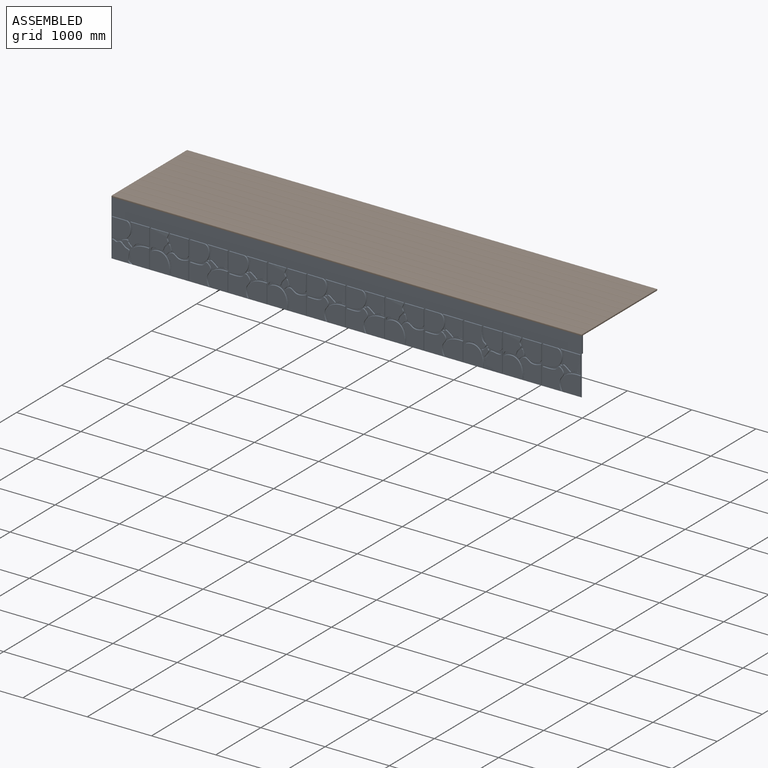
[diagram: assembled view]
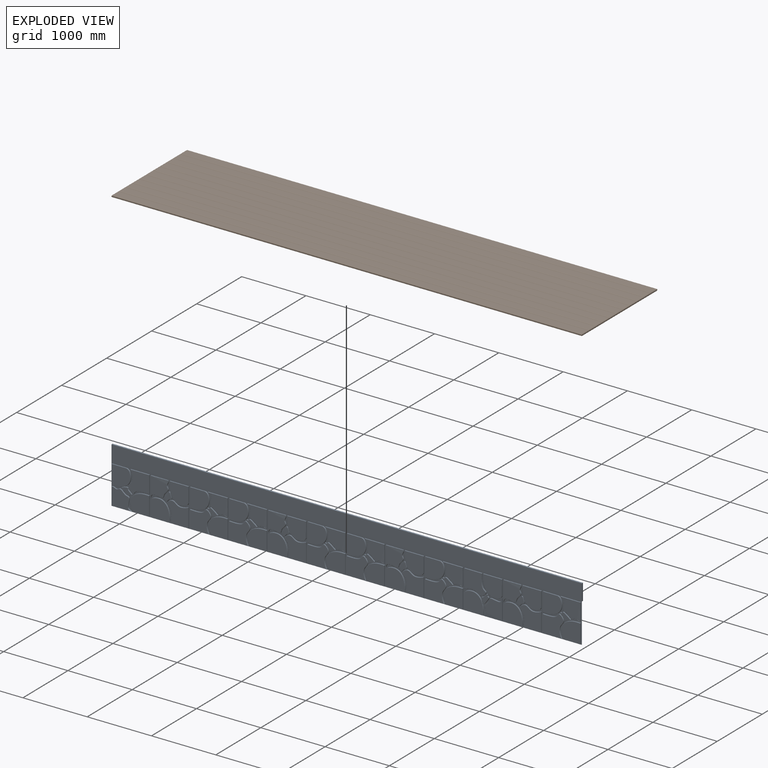
[diagram: exploded view]
GUIDED TOUR — MATED ASSEMBLY WITH SUBASSEMBLIES (Onshape document 3dcd6eb83dcc1490669a34c6, AutoMate assembly 3dcd6eb83dcc1490669a34c6_368724a0698504fedb2d7446_d10040594b9659fdce17934c_default)

This assembly has 24 component occurrences arranged in 2 top-level units: 0 individual components plus 2 subassemblies (S0, S1). The tour has two levels: first the top level, where each subassembly is treated as one rigid unit; then each subassembly is toured internally in its own section (nesting deeper than one subassembly level is flattened into its subassembly's section).

Components are labeled P0..P23 across the whole record; subassembly units are labeled S0..S1. A mate is a constraint between two units; its type names the relative motion it leaves free:
  PLANAR — leaves sliding in the plane through the listed point (normal = the listed direction) and rotation about that normal free.
Axis/direction vectors are unit vectors and 'through' points are millimeter coordinates, both in the assembly's world frame.

TOP-LEVEL MATES (between units; each subassembly's internal mates are listed in its own section)
  1. PLANAR "Planar 1": S1 <-> S0, direction (0.000, 0.000, -1.000) through (-256.21, -809.91, 1233.63) mm

TOP-LEVEL ASSEMBLY ORDER
  1. S1 — the base component [order verified]
  2. S0 [order verified]
Order-tag legend:
  [order verified] — this step's position reverses a verified removal order: the component was checked to insert without passing through the ones already placed.

Of the 24 component occurrences, 12 carry the full construction recipe — the FeatureScript program that regenerates the part's solid from scratch; the rest are supplied as boundary geometry only. Each toured unit is shown spotlighted twice — assembled, then exploded with a leader line back to its socket (green = recipe-attached component, orange = geometry-only, blue = subassembly unit; the rest desaturated gray).
NOTE — this tour is split across 2 documents so each fits a 32k-token context. This is document 1: the component sections continue in the remaining 1 document, each repeating the header above.
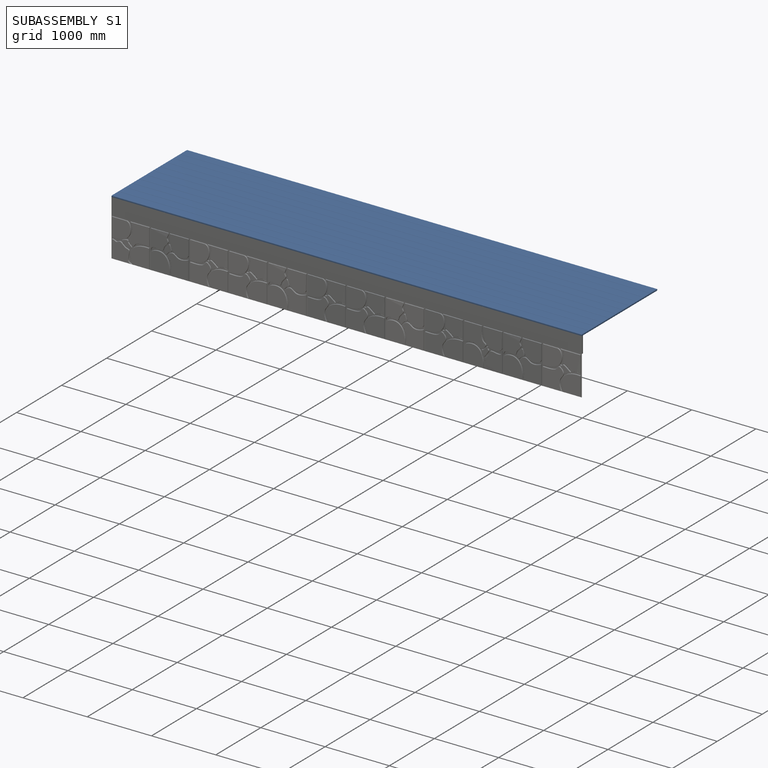
[diagram: subassembly S1 — assembled]
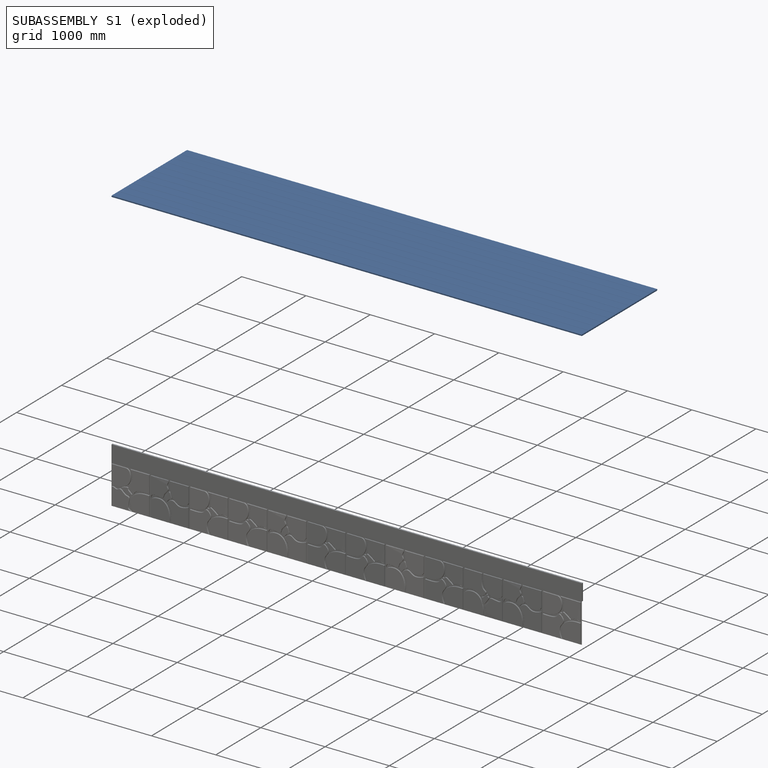
[diagram: subassembly S1 — exploded]
SUBASSEMBLY S1 — 11 components (P2, P3, P4, P5, P10, P11, P14, P15, P16, P21, P22), of which 11 recipe-attached; toured below.
Held by: PLANAR mate "Planar 1" to S0.
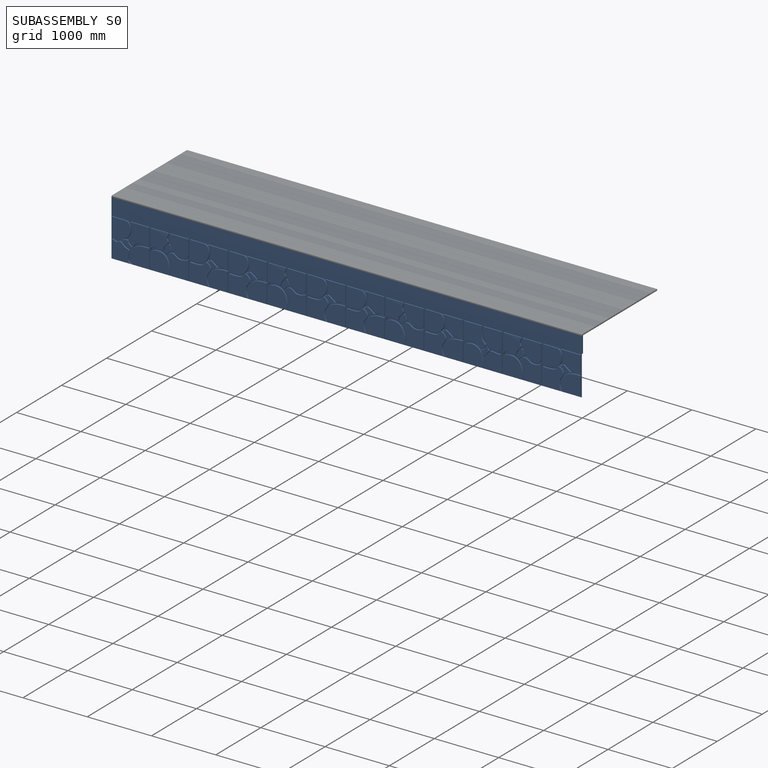
[diagram: subassembly S0 — assembled]
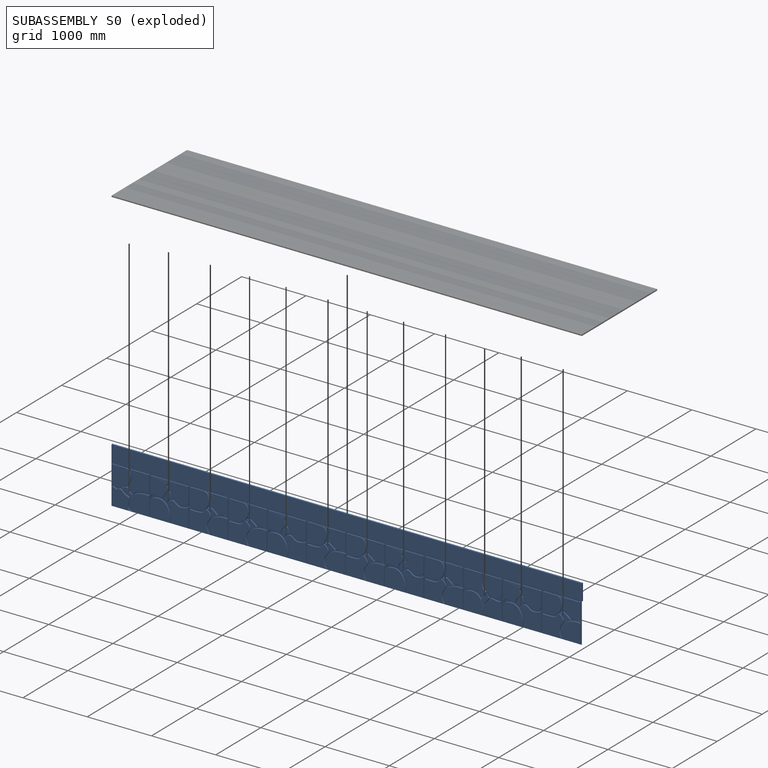
[diagram: subassembly S0 — exploded]
SUBASSEMBLY S0 — 13 components (P0, P1, P6, P7, P8, P9, P12, P13, P17, P18, P19, P20, P23), of which 1 recipe-attached; toured below.
Held by: PLANAR mate "Planar 1" to S1.
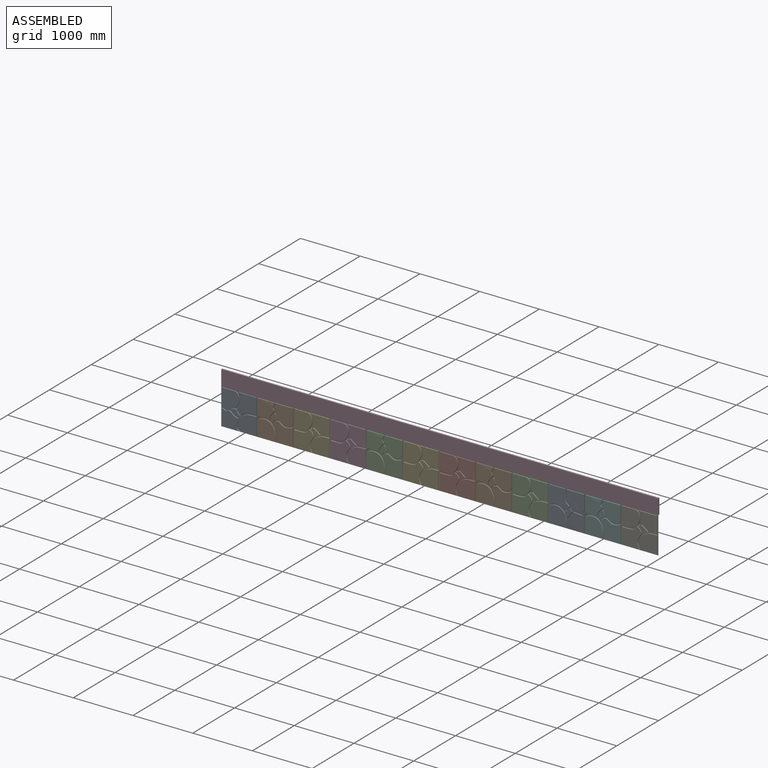
[diagram: subassembly S0 — assembled view]
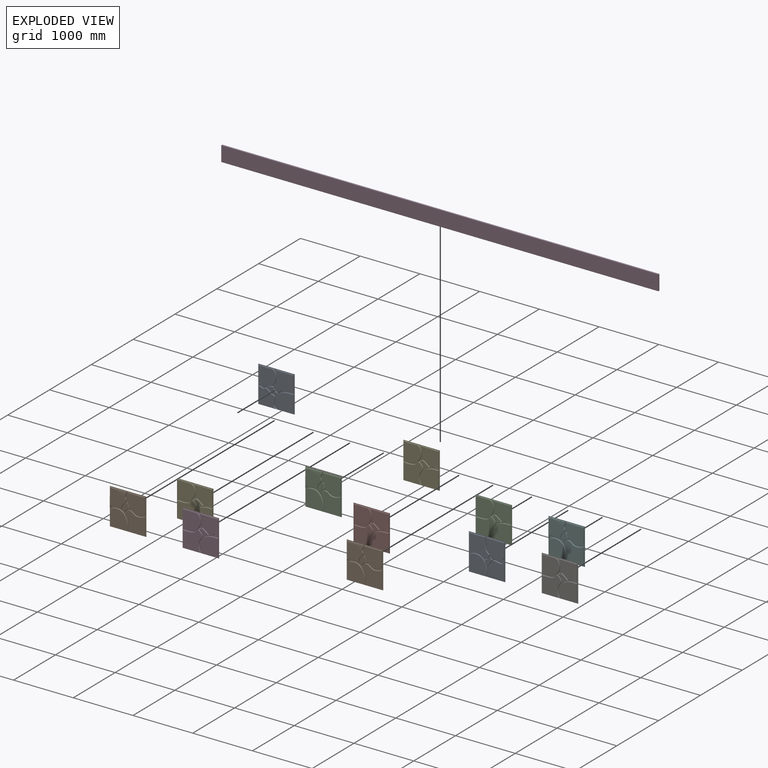
[diagram: subassembly S0 — exploded view]
SUBASSEMBLY S0 TOUR — 13 components, shown here in isolation at its own camera.

INTERNAL MATES
  1. PLANAR "Planar 5": P6 <-> P20, direction (0.000, 1.000, 0.000) through (2182.19, -807.26, 979.63) mm
  2. PLANAR "Planar 8": P18 <-> P13, direction (0.000, 1.000, 0.000) through (4010.99, -806.79, 979.63) mm
  3. PLANAR "Planar 11": P9 <-> P17, direction (0.000, 1.000, 0.000) through (5839.79, -806.32, 979.63) mm
  4. PLANAR "Planar 7": P13 <-> P23, direction (0.000, 1.000, 0.000) through (3401.39, -806.94, 979.63) mm
  5. PLANAR "Planar 10": P17 <-> P19, direction (0.000, 1.000, 0.000) through (5230.19, -806.48, 979.63) mm
  6. PLANAR "Planar 3": P8 <-> P1, direction (0.000, 1.000, 0.000) through (962.99, -807.57, 979.63) mm
  7. PLANAR "Planar 2": P1 <-> P0, direction (0.000, 1.000, 0.000) through (353.39, -807.72, 979.63) mm
  8. PLANAR "Planar 4": P20 <-> P8, direction (0.000, 1.000, 0.000) through (1572.59, -807.41, 979.63) mm
  9. PLANAR "Planar 13": P7 <-> P0, direction (0.000, 0.000, -1.000) through (-256.21, -809.91, 979.63) mm
  10. PLANAR "Planar 9": P19 <-> P18, direction (0.000, 1.000, 0.000) through (4620.59, -806.63, 979.63) mm
  11. PLANAR "Planar 6": P23 <-> P6, direction (0.000, 1.000, 0.000) through (2791.79, -807.10, 979.63) mm
  12. PLANAR "Planar 12": P12 <-> P9, direction (0.000, 1.000, 0.000) through (6449.39, -806.17, 979.63) mm
  13. PLANAR "Planar 12": P12 <-> P9, direction (0.000, 1.000, 0.000) through (6449.39, -806.17, 979.63) mm
  14. PLANAR "Planar 8": P18 <-> P13, direction (0.000, 1.000, 0.000) through (4010.99, -806.79, 979.63) mm
  15. PLANAR "Planar 3": P8 <-> P1, direction (0.000, 1.000, 0.000) through (962.99, -807.57, 979.63) mm
  16. PLANAR "Planar 13": P7 <-> P0, direction (0.000, 0.000, -1.000) through (-256.21, -809.91, 979.63) mm
  17. PLANAR "Planar 6": P23 <-> P6, direction (0.000, 1.000, 0.000) through (2791.79, -807.10, 979.63) mm
  18. PLANAR "Planar 11": P9 <-> P17, direction (0.000, 1.000, 0.000) through (5839.79, -806.32, 979.63) mm
  19. PLANAR "Planar 5": P6 <-> P20, direction (0.000, 1.000, 0.000) through (2182.19, -807.26, 979.63) mm
  20. PLANAR "Planar 4": P20 <-> P8, direction (0.000, 1.000, 0.000) through (1572.59, -807.41, 979.63) mm
  21. PLANAR "Planar 7": P13 <-> P23, direction (0.000, 1.000, 0.000) through (3401.39, -806.94, 979.63) mm
  22. PLANAR "Planar 9": P19 <-> P18, direction (0.000, 1.000, 0.000) through (4620.59, -806.63, 979.63) mm
  23. PLANAR "Planar 2": P1 <-> P0, direction (0.000, 1.000, 0.000) through (353.39, -807.72, 979.63) mm
  24. PLANAR "Planar 10": P17 <-> P19, direction (0.000, 1.000, 0.000) through (5230.19, -806.48, 979.63) mm

ASSEMBLY ORDER (within the subassembly)
  1. P23 — the base component [order verified]
  2. P13 [order verified]
  3. P18 [order verified]
  4. P6 [order verified]
  5. P20 [order verified]
  6. P8 [order verified]
  7. P1 [order verified]
  8. P0 [order verified]
  9. P19 [order verified]
  10. P17 [order verified]
  11. P9 [order verified]
  12. P12 [order verified]
  13. P7 [order verified]
Order-tag legend:
  [order verified] — this step's position reverses a verified removal order: the component was checked to insert without passing through the ones already placed.
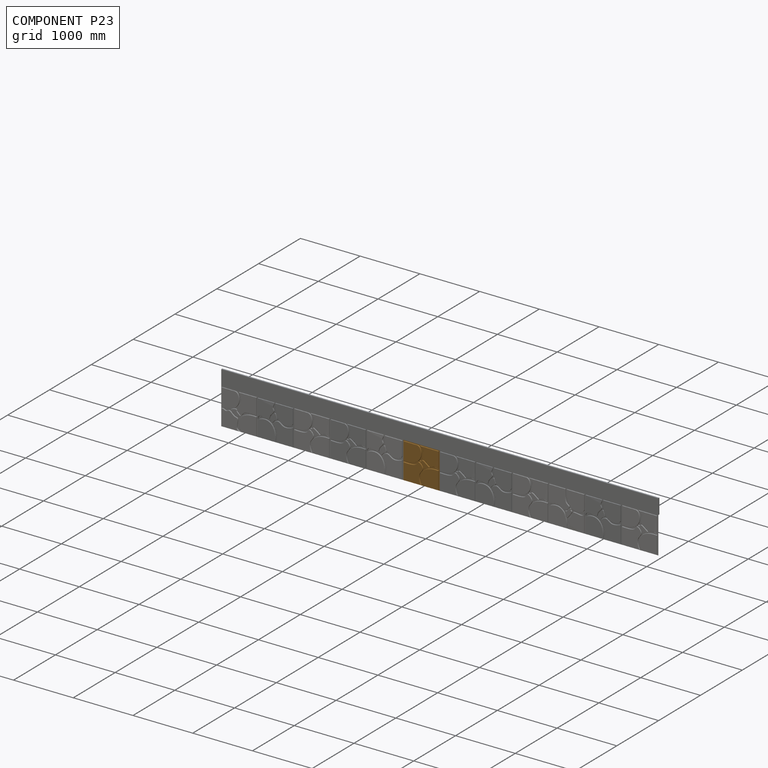
[diagram: component P23 — assembled]
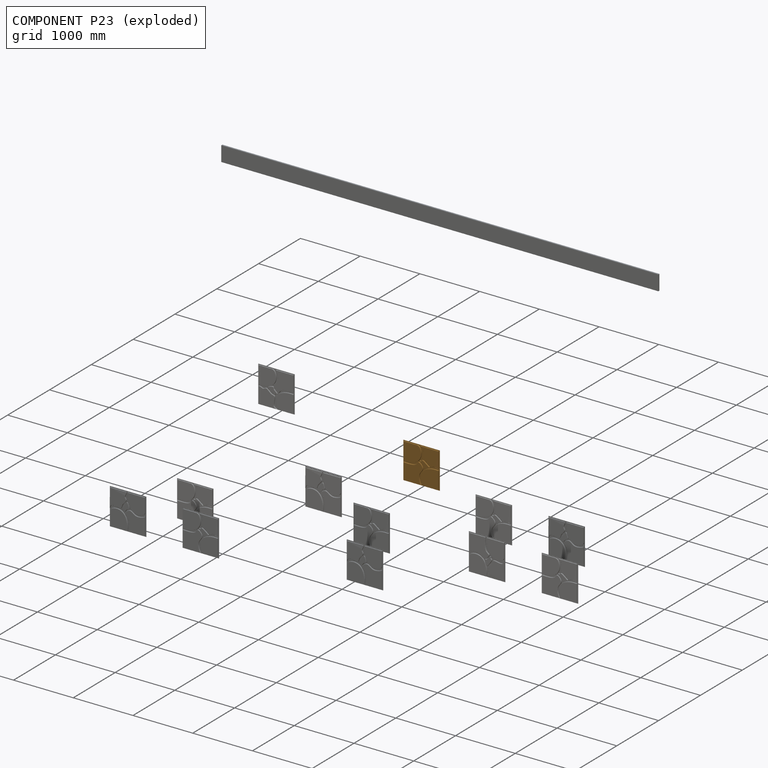
[diagram: component P23 — exploded]
COMPONENT P23 — geometry summary (no construction recipe available for this part):
  bounding box: 609.6 x 609.6 x 18.3 mm
  B-rep topology: 1 solid, 29 faces, 130 edges
  volume: 5727487 mm^3 (84% of its bounding box)
Held by: PLANAR mate "Planar 7" to P13; PLANAR mate "Planar 6" to P6; PLANAR mate "Planar 6" to P6; PLANAR mate "Planar 7" to P13.
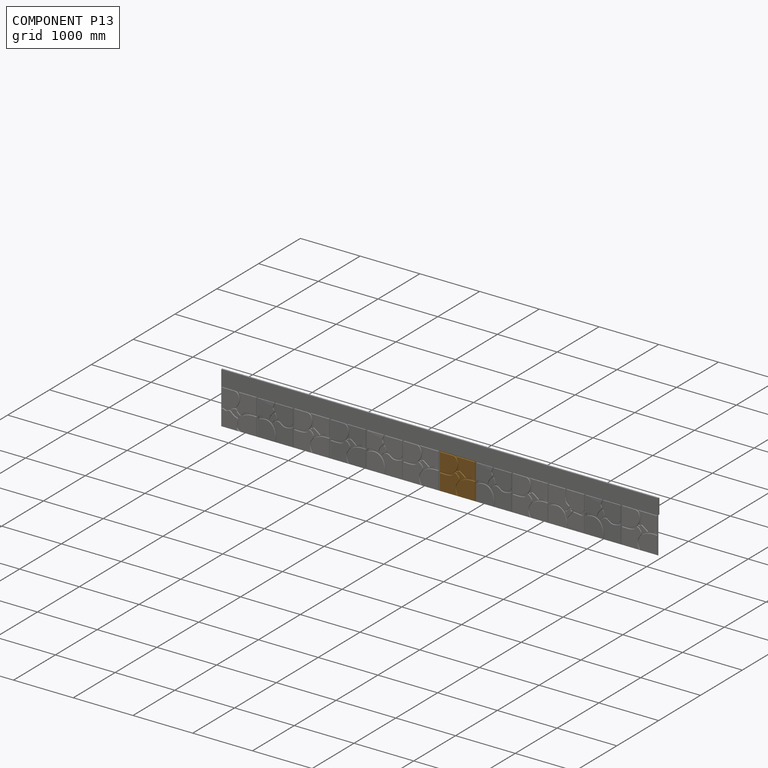
[diagram: component P13 — assembled]
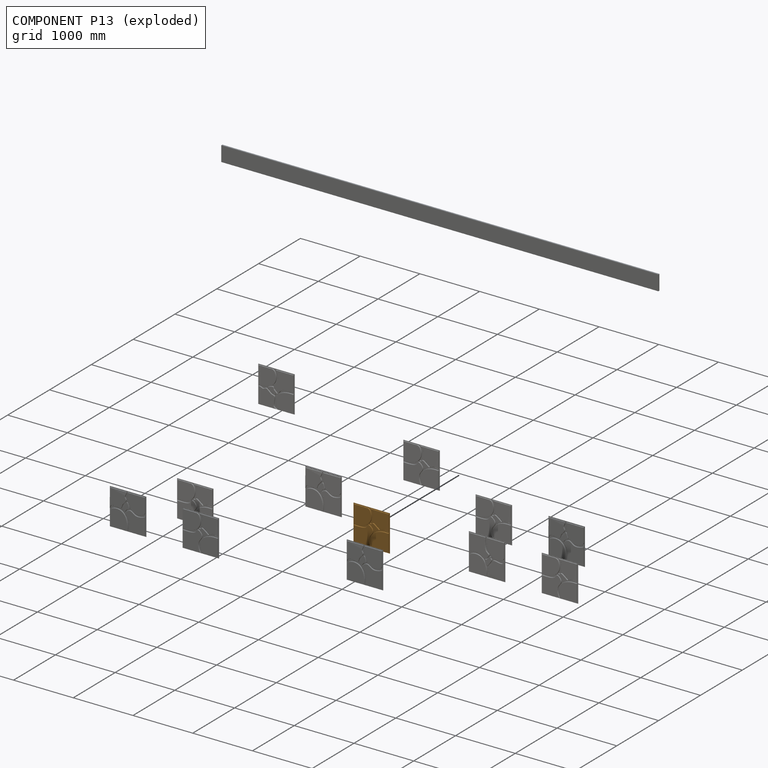
[diagram: component P13 — exploded]
COMPONENT P13 — geometry summary (no construction recipe available for this part):
  bounding box: 609.6 x 609.6 x 18.3 mm
  B-rep topology: 1 solid, 29 faces, 130 edges
  volume: 5727487 mm^3 (84% of its bounding box)
Held by: PLANAR mate "Planar 8" to P18; PLANAR mate "Planar 7" to P23; PLANAR mate "Planar 8" to P18; PLANAR mate "Planar 7" to P23.
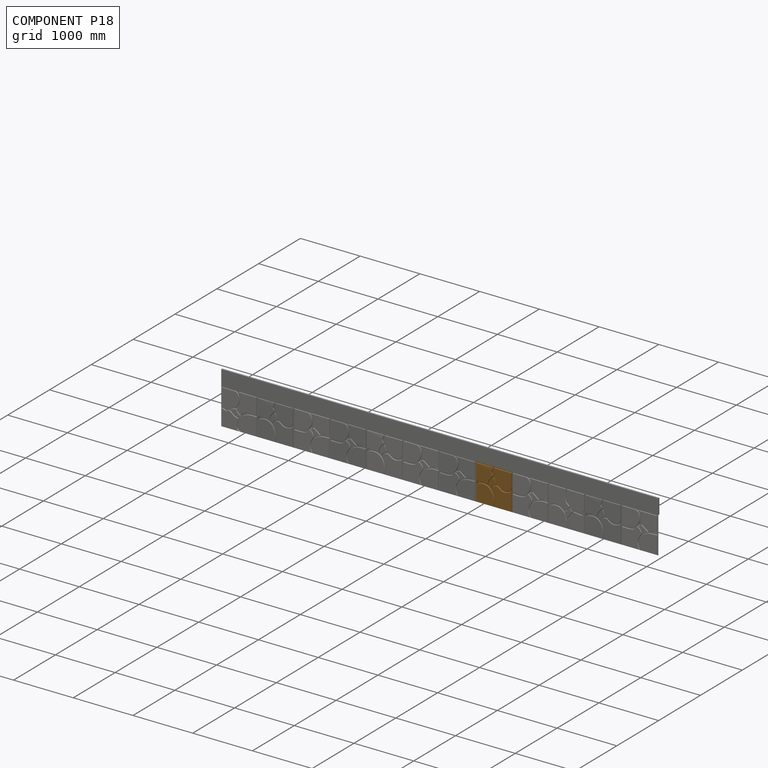
[diagram: component P18 — assembled]
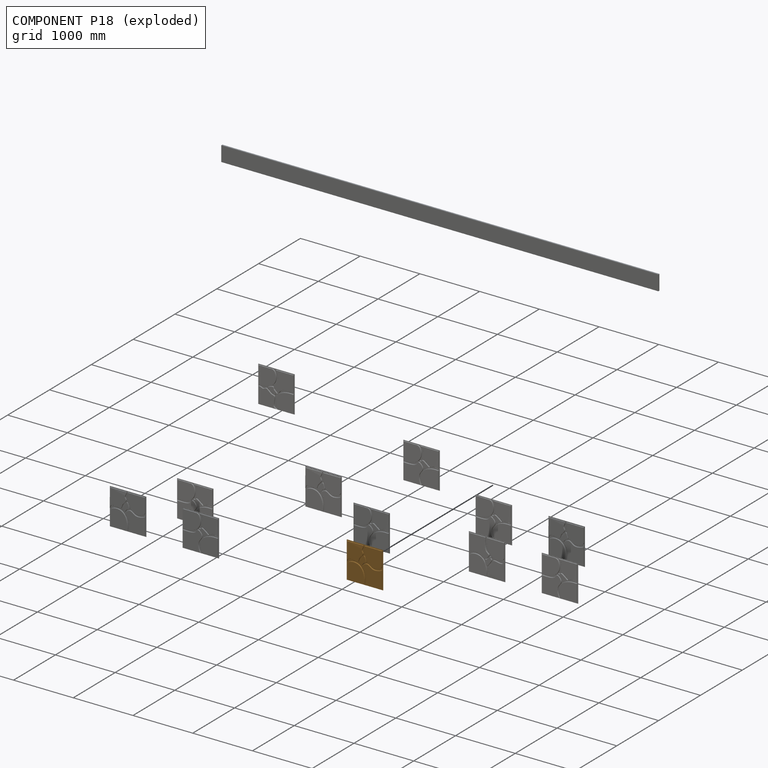
[diagram: component P18 — exploded]
COMPONENT P18 — geometry summary (no construction recipe available for this part):
  bounding box: 609.6 x 609.6 x 18.3 mm
  B-rep topology: 1 solid, 29 faces, 130 edges
  volume: 5727487 mm^3 (84% of its bounding box)
Held by: PLANAR mate "Planar 8" to P13; PLANAR mate "Planar 9" to P19; PLANAR mate "Planar 8" to P13; PLANAR mate "Planar 9" to P19.
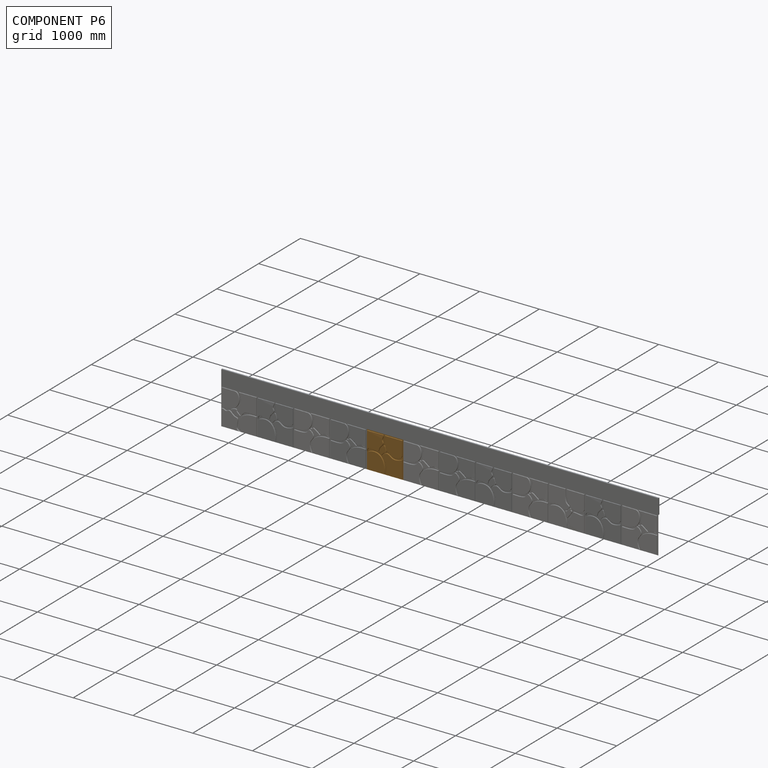
[diagram: component P6 — assembled]
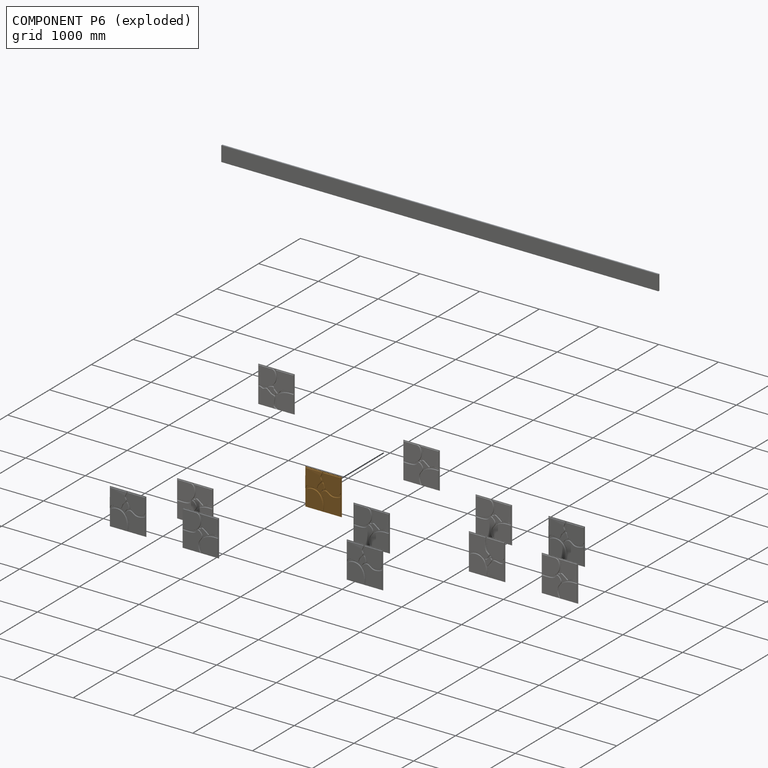
[diagram: component P6 — exploded]
COMPONENT P6 — geometry summary (no construction recipe available for this part):
  bounding box: 609.6 x 609.6 x 18.3 mm
  B-rep topology: 1 solid, 29 faces, 130 edges
  volume: 5727487 mm^3 (84% of its bounding box)
Held by: PLANAR mate "Planar 5" to P20; PLANAR mate "Planar 6" to P23; PLANAR mate "Planar 6" to P23; PLANAR mate "Planar 5" to P20.
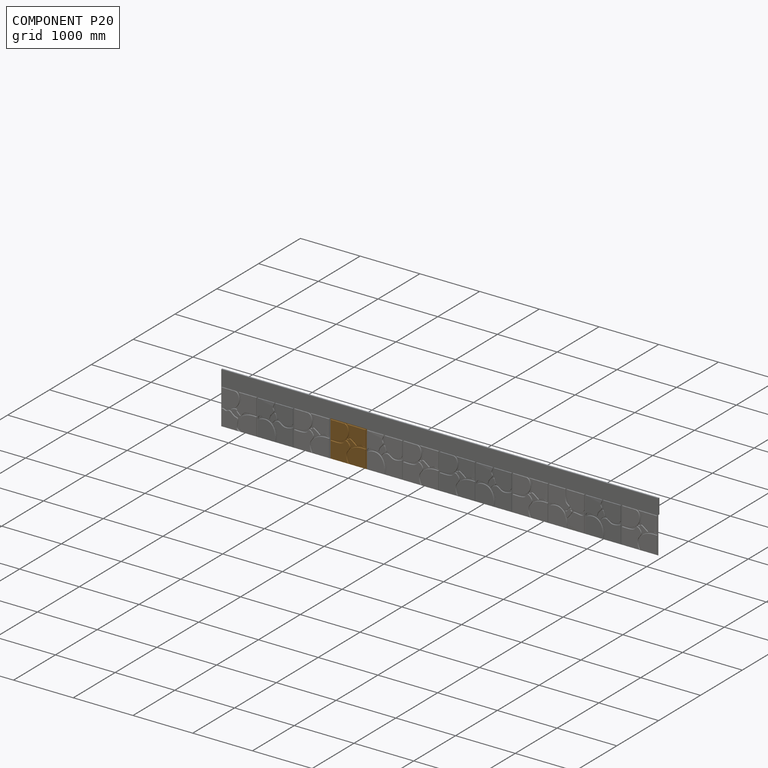
[diagram: component P20 — assembled]
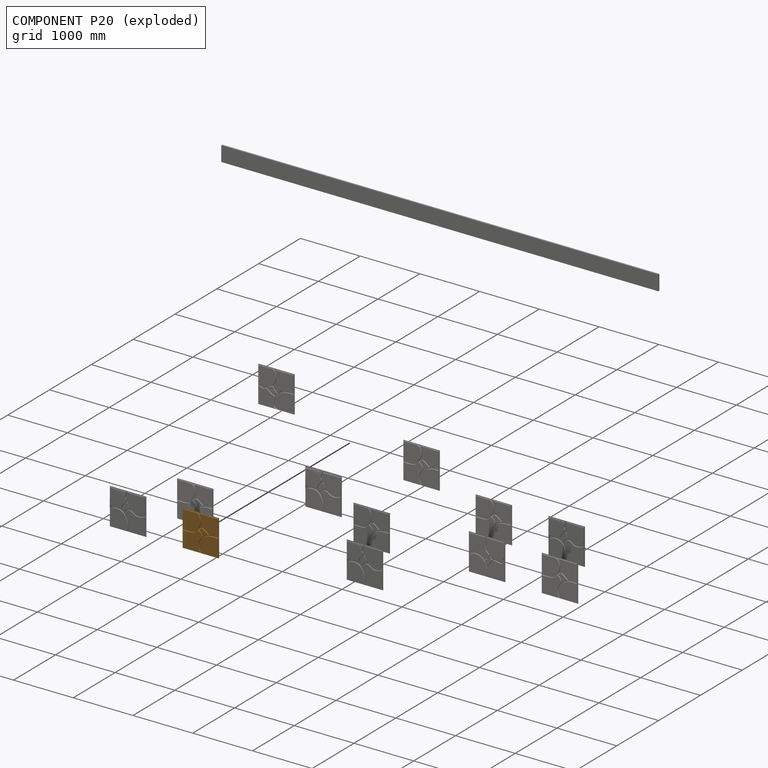
[diagram: component P20 — exploded]
COMPONENT P20 — geometry summary (no construction recipe available for this part):
  bounding box: 609.6 x 609.6 x 18.3 mm
  B-rep topology: 1 solid, 29 faces, 130 edges
  volume: 5727487 mm^3 (84% of its bounding box)
Held by: PLANAR mate "Planar 5" to P6; PLANAR mate "Planar 4" to P8; PLANAR mate "Planar 5" to P6; PLANAR mate "Planar 4" to P8.
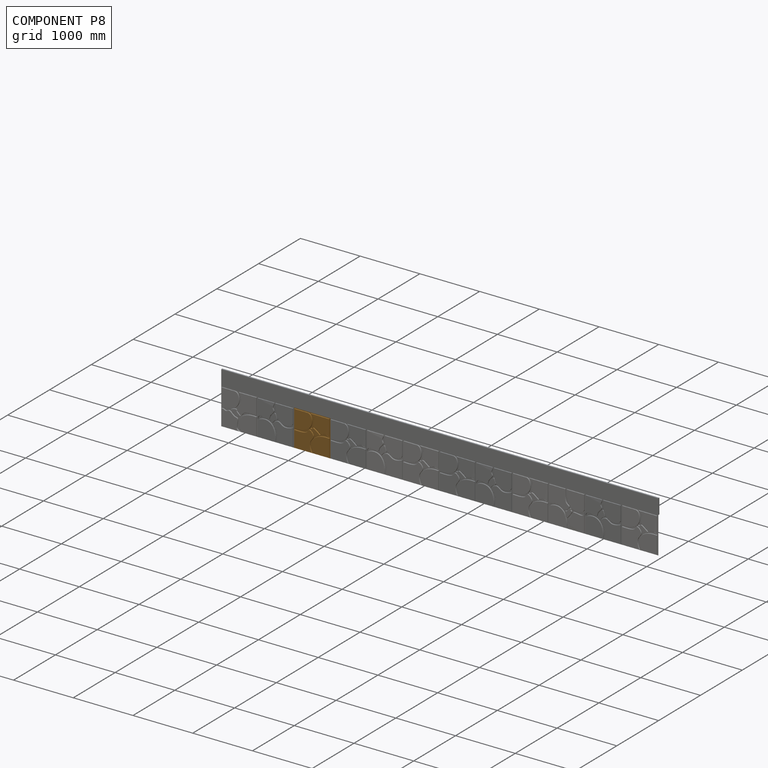
[diagram: component P8 — assembled]
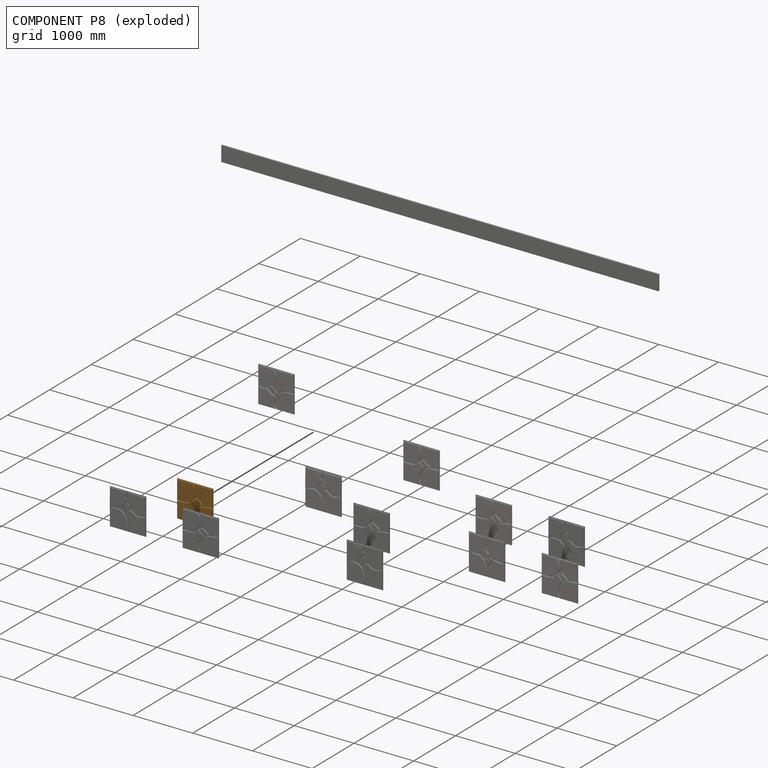
[diagram: component P8 — exploded]
COMPONENT P8 — geometry summary (no construction recipe available for this part):
  bounding box: 609.6 x 609.6 x 18.3 mm
  B-rep topology: 1 solid, 29 faces, 130 edges
  volume: 5727487 mm^3 (84% of its bounding box)
Held by: PLANAR mate "Planar 3" to P1; PLANAR mate "Planar 4" to P20; PLANAR mate "Planar 3" to P1; PLANAR mate "Planar 4" to P20.
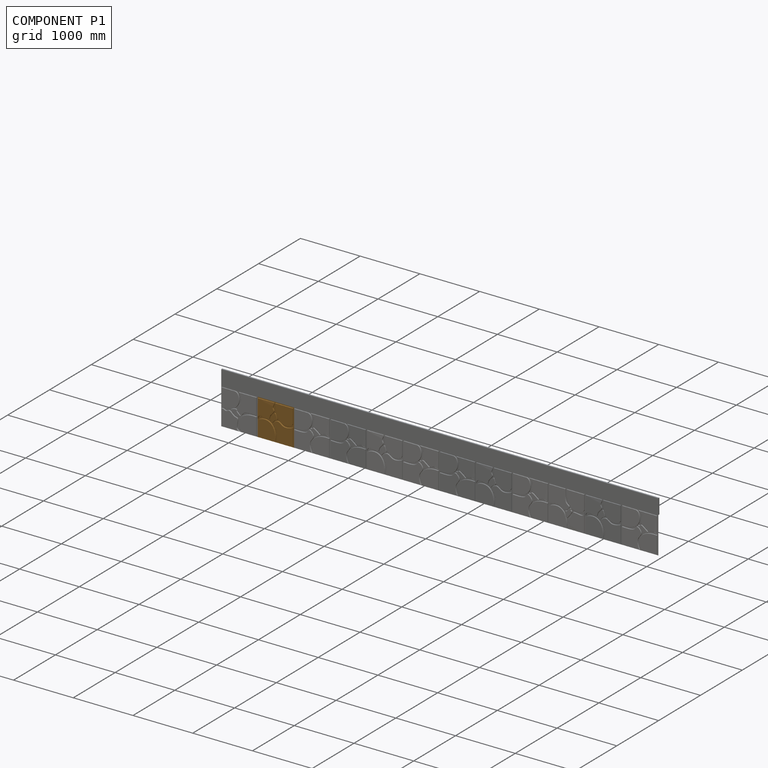
[diagram: component P1 — assembled]
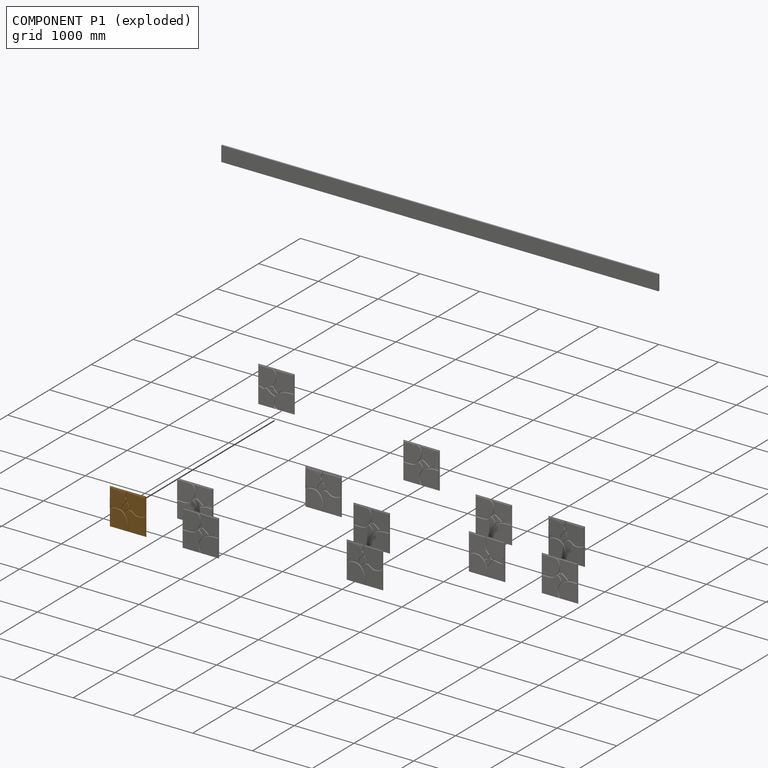
[diagram: component P1 — exploded]
COMPONENT P1 — geometry summary (no construction recipe available for this part):
  bounding box: 609.6 x 609.6 x 18.3 mm
  B-rep topology: 1 solid, 29 faces, 130 edges
  volume: 5727487 mm^3 (84% of its bounding box)
Held by: PLANAR mate "Planar 3" to P8; PLANAR mate "Planar 2" to P0; PLANAR mate "Planar 3" to P8; PLANAR mate "Planar 2" to P0.
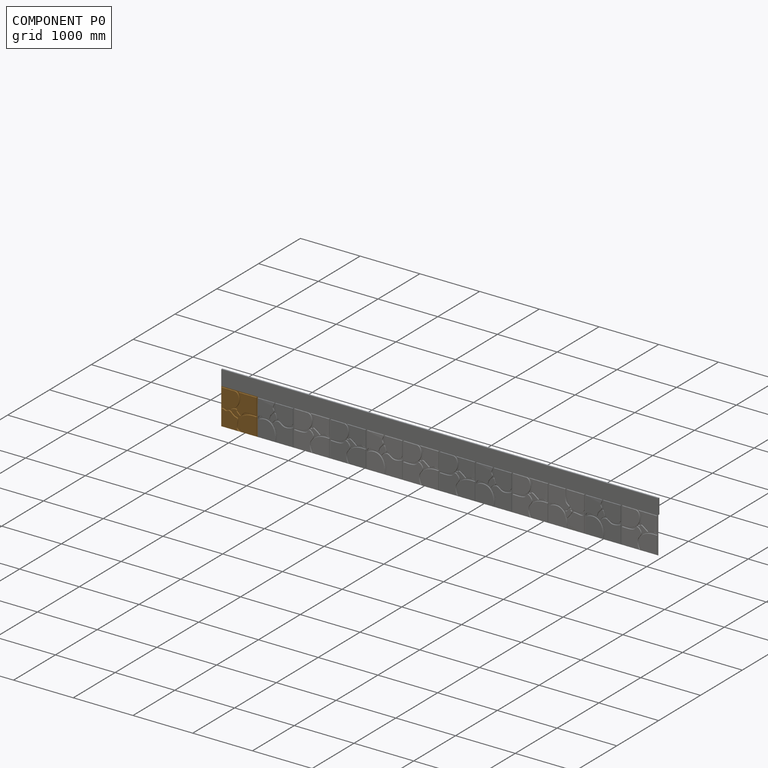
[diagram: component P0 — assembled]
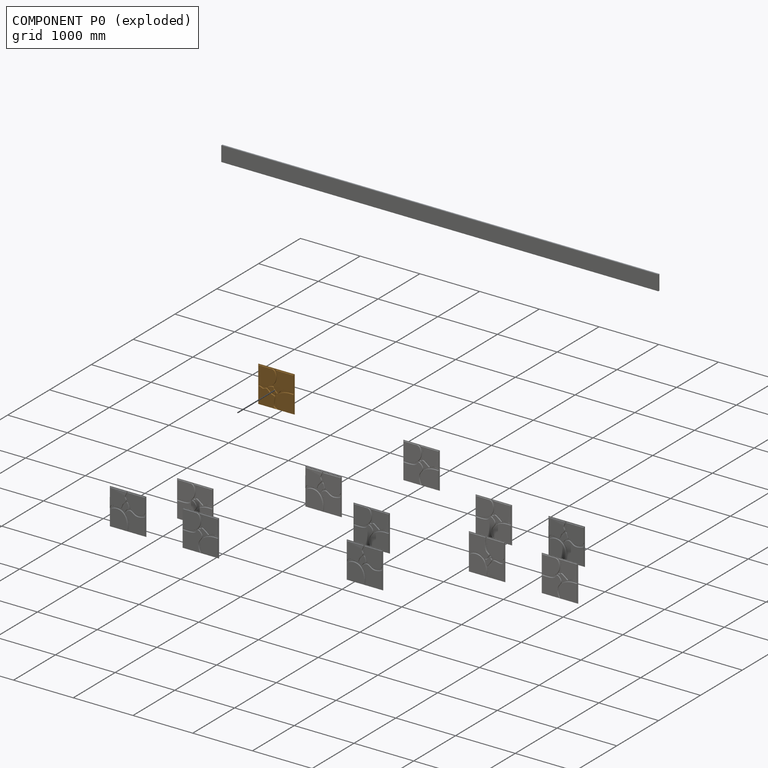
[diagram: component P0 — exploded]
COMPONENT P0 — geometry summary (no construction recipe available for this part):
  bounding box: 609.6 x 609.6 x 18.3 mm
  B-rep topology: 1 solid, 29 faces, 130 edges
  volume: 5727487 mm^3 (84% of its bounding box)
Held by: PLANAR mate "Planar 2" to P1; PLANAR mate "Planar 13" to P7; PLANAR mate "Planar 13" to P7; PLANAR mate "Planar 2" to P1.
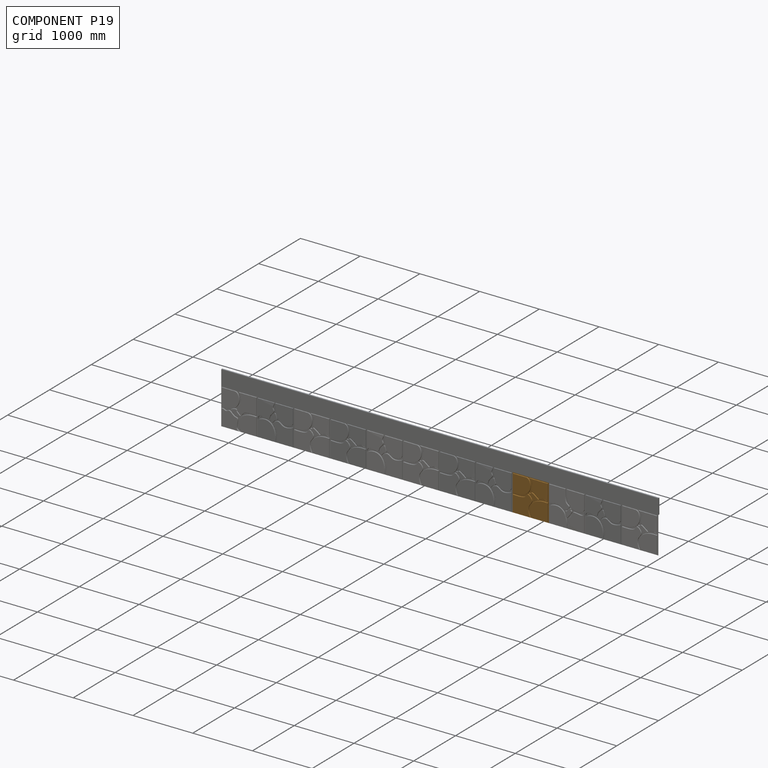
[diagram: component P19 — assembled]
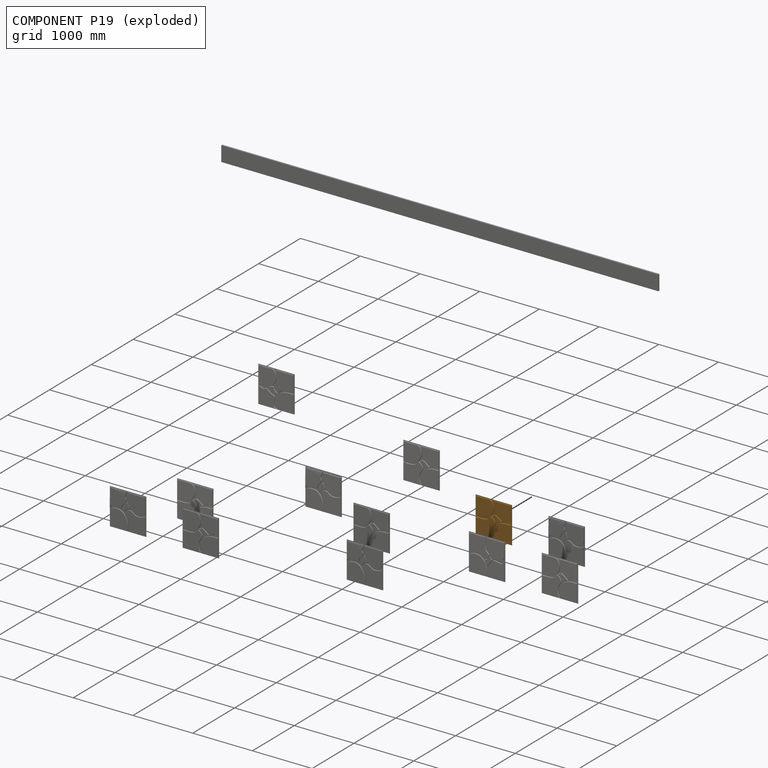
[diagram: component P19 — exploded]
COMPONENT P19 — geometry summary (no construction recipe available for this part):
  bounding box: 609.6 x 609.6 x 18.3 mm
  B-rep topology: 1 solid, 29 faces, 130 edges
  volume: 5727487 mm^3 (84% of its bounding box)
Held by: PLANAR mate "Planar 10" to P17; PLANAR mate "Planar 9" to P18; PLANAR mate "Planar 9" to P18; PLANAR mate "Planar 10" to P17.
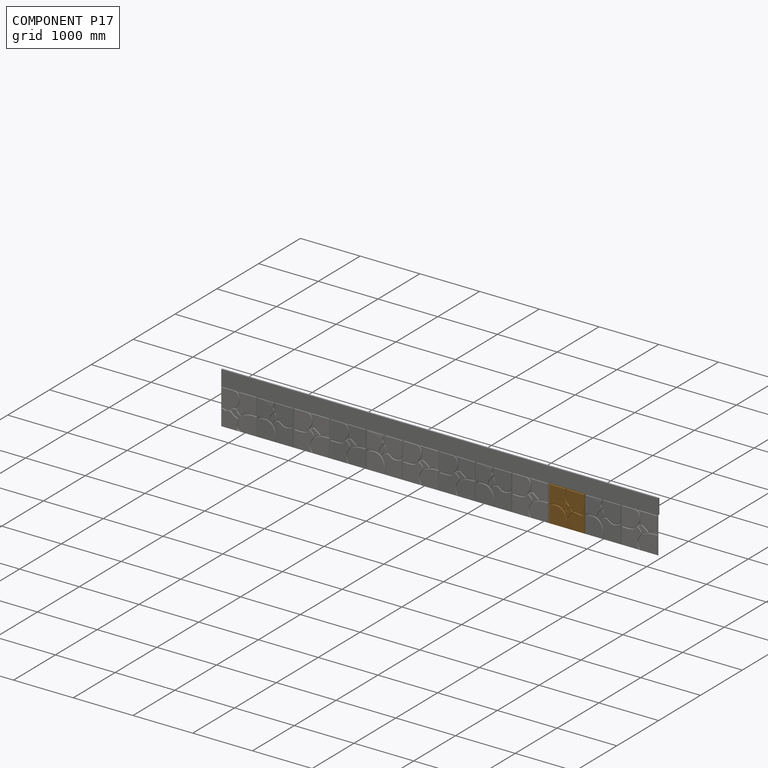
[diagram: component P17 — assembled]
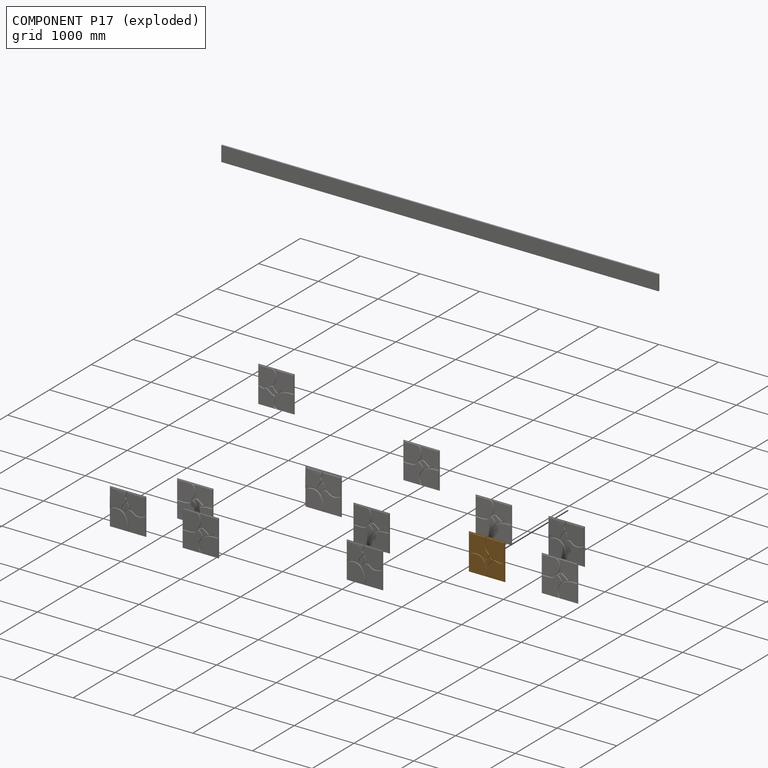
[diagram: component P17 — exploded]
COMPONENT P17 — geometry summary (no construction recipe available for this part):
  bounding box: 609.6 x 609.6 x 18.3 mm
  B-rep topology: 1 solid, 29 faces, 130 edges
  volume: 5727487 mm^3 (84% of its bounding box)
Held by: PLANAR mate "Planar 11" to P9; PLANAR mate "Planar 10" to P19; PLANAR mate "Planar 11" to P9; PLANAR mate "Planar 10" to P19.
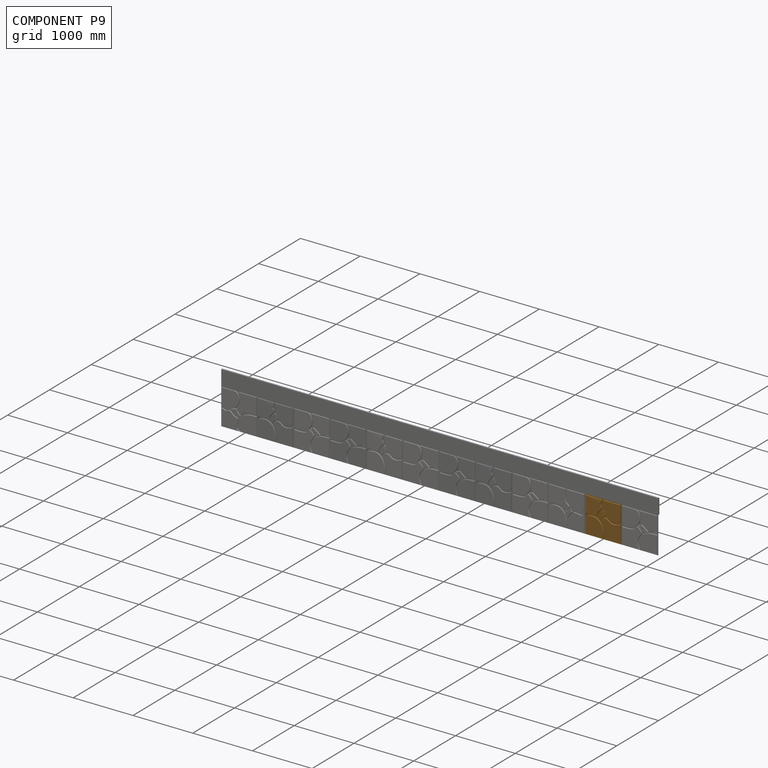
[diagram: component P9 — assembled]
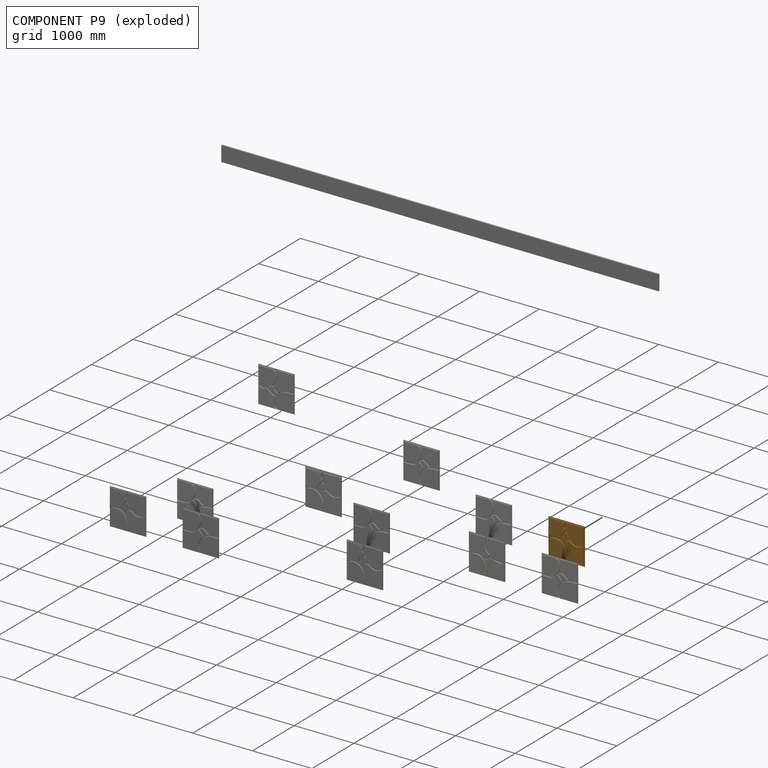
[diagram: component P9 — exploded]
COMPONENT P9 — geometry summary (no construction recipe available for this part):
  bounding box: 609.6 x 609.6 x 18.3 mm
  B-rep topology: 1 solid, 29 faces, 130 edges
  volume: 5727487 mm^3 (84% of its bounding box)
Held by: PLANAR mate "Planar 11" to P17; PLANAR mate "Planar 12" to P12; PLANAR mate "Planar 12" to P12; PLANAR mate "Planar 11" to P17.
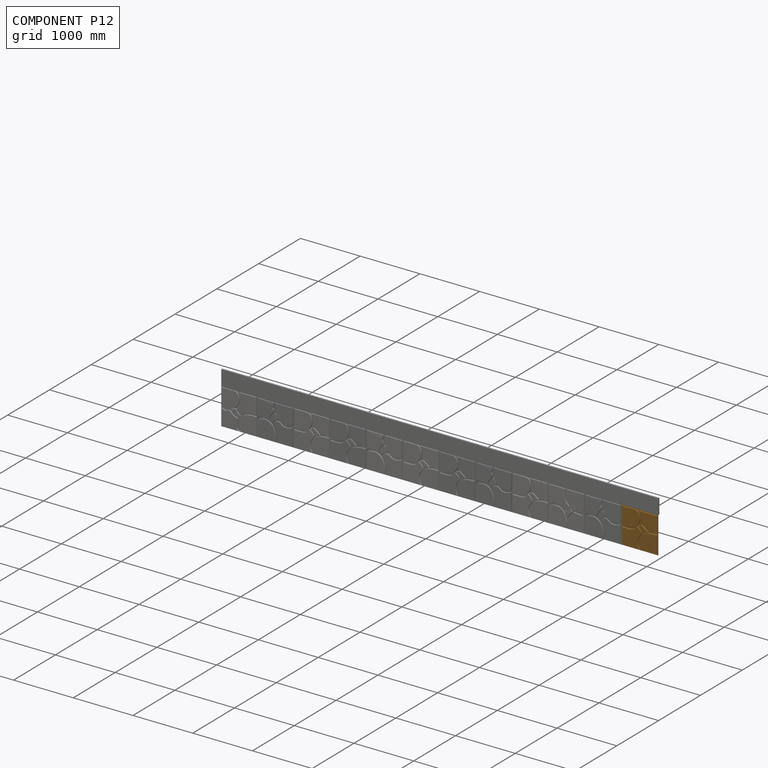
[diagram: component P12 — assembled]
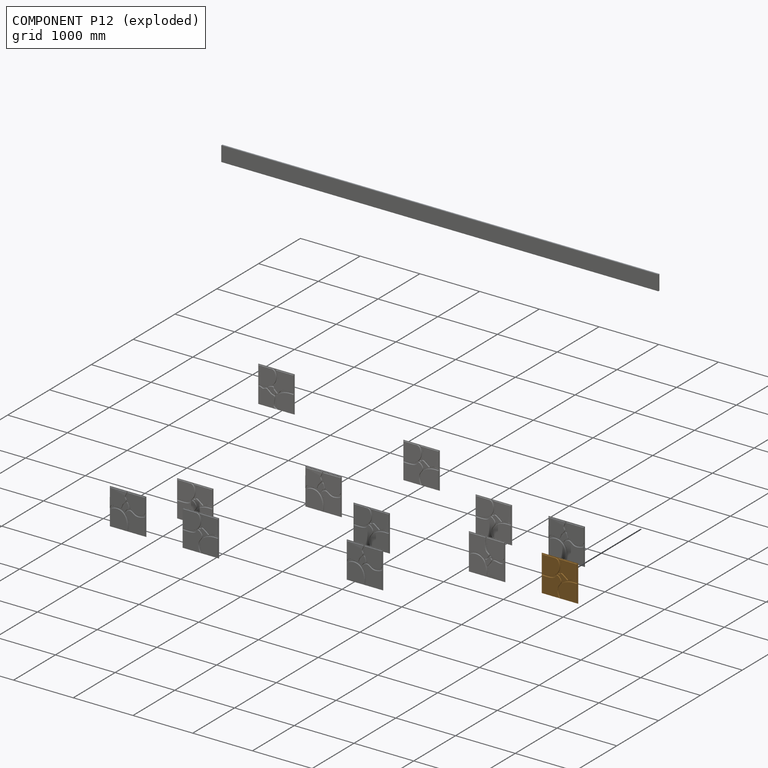
[diagram: component P12 — exploded]
COMPONENT P12 — geometry summary (no construction recipe available for this part):
  bounding box: 609.6 x 609.6 x 18.3 mm
  B-rep topology: 1 solid, 29 faces, 130 edges
  volume: 5727487 mm^3 (84% of its bounding box)
Held by: PLANAR mate "Planar 12" to P9; PLANAR mate "Planar 12" to P9.
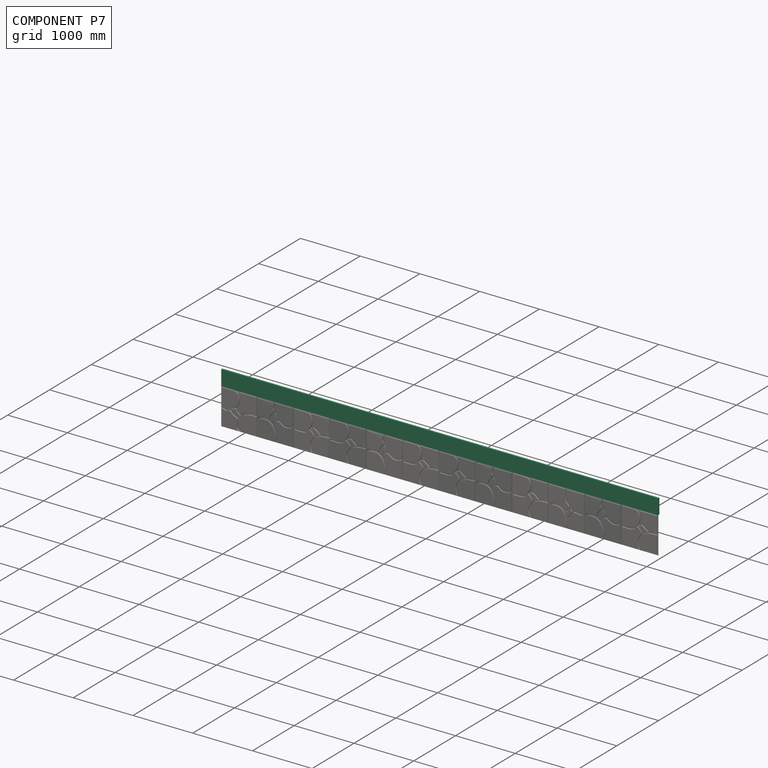
[diagram: component P7 — assembled]
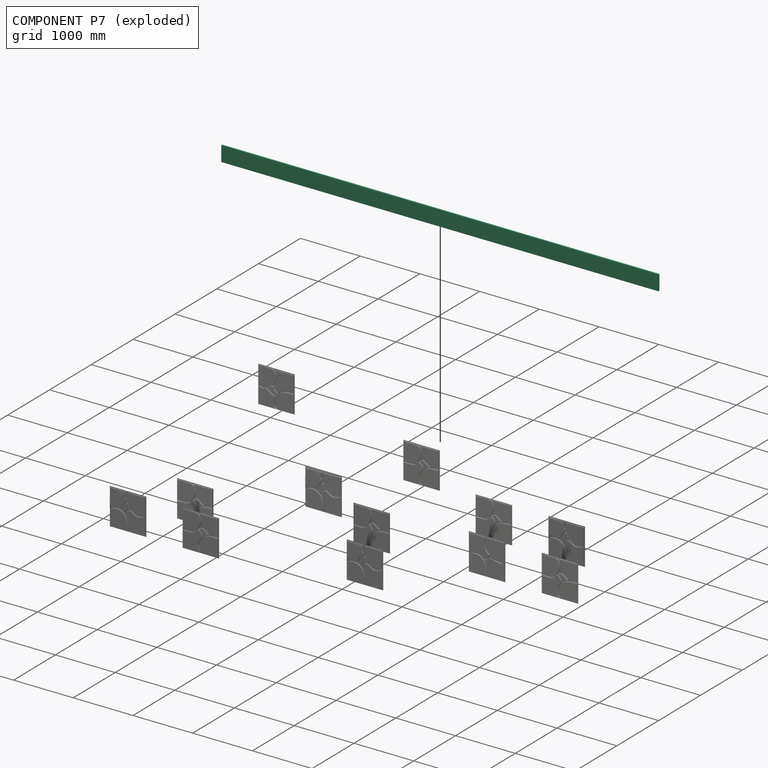
[diagram: component P7 — exploded]
COMPONENT P7 — recipe-attached (CADFS 00404469, mesh-verified: the recipe's output STEP matches this component's geometry to below the mesh-comparison resolution (tessellation chordal tolerance ~11 mm)).
Held by: PLANAR mate "Planar 13" to P0; PLANAR mate "Planar 13" to P0.
Construction recipe (FeatureScript — the CAD program that rebuilds this solid; sketch coordinates are in the units given by the * unit suffixes, e.g. mm):

FeatureScript 1511;
import(path : "onshape/std/geometry.fs", version : "1511.0");
import(path : "onshape/std/common.fs", version : "1511.0");
const mm = millimeter;
const VERTEX = EntityType.VERTEX;
const EDGE = EntityType.EDGE;
const FACE = EntityType.FACE;
const BODY = EntityType.BODY;
function v(x, y){return vector(x, y);}
function OD(order){return orderDisambiguation(order);}
function OSD(set){return originalSetDisambiguation(set);}
function TD(topology){return topologyDisambiguation(topology);}
function TDD(query){return trueDependencyDisambiguation(query);}
function sQuery(a, b, c) {return sketchEntityQuery(a, b, c);}

annotation { "Feature Type Name" : "Feature", "Feature Type Description" : "" }
export const myFeature = defineFeature(function(context is Context, id is Id, definition is map)
    precondition{}
    {
        {
            var Q0;
            Q0=qCreatedBy(makeId("Front.planeOp"),FACE);
            var sketch = newSketch(context, id + "F0", { "sketchPlane" : qUnion([Q0])});
            skLineSegment(sketch, "E0", {"start": v(0, 0) * mm, "end": v(25.4, 0) * mm});
            skLineSegment(sketch, "E1", {"start": v(25.4, 0) * mm, "end": v(25.4, -254) * mm});
            skLineSegment(sketch, "E2", {"start": v(25.4, -254) * mm, "end": v(0, -254) * mm});
            skLineSegment(sketch, "E3", {"start": v(0, -254) * mm, "end": v(0, 0) * mm});
            skSolve(sketch);
        }
        {
            var Q0;
            Q0=makeQuery(id+"F0.imprint","IMPRINT",FACE,{"disambiguationData":[TD([[makeQuery(id+"F0.imprint","IMPRINT",EDGE,{"derivedFrom":sQuery(id+"F0.wireOp",EDGE,"E0")}),-1.0]])]});
            extrude(context, id + "F1", {"entities" : qUnion([Q0]), "depth" : 7315.2 * mm});
        }
    });
